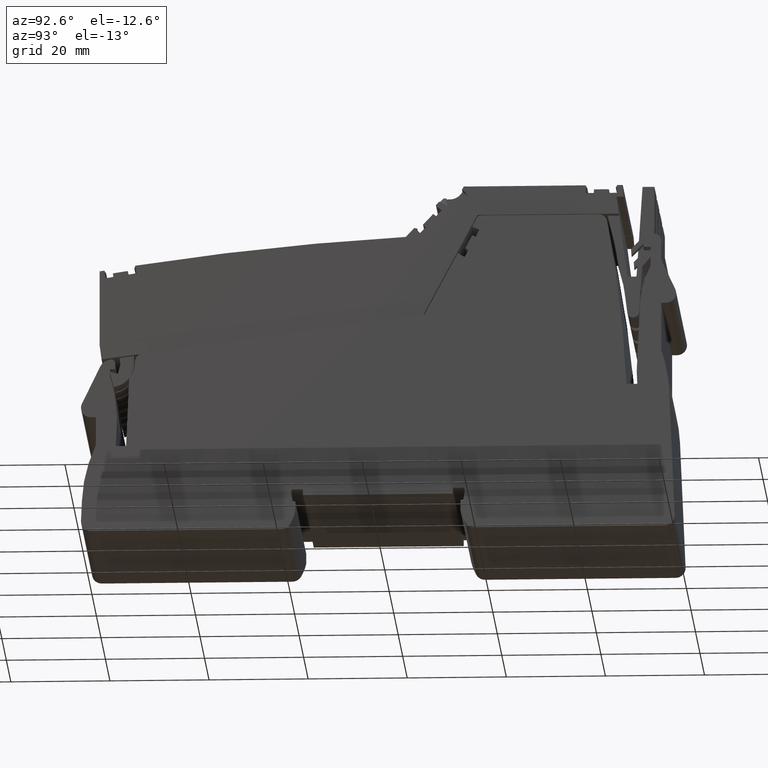
[diagram: clean part render]
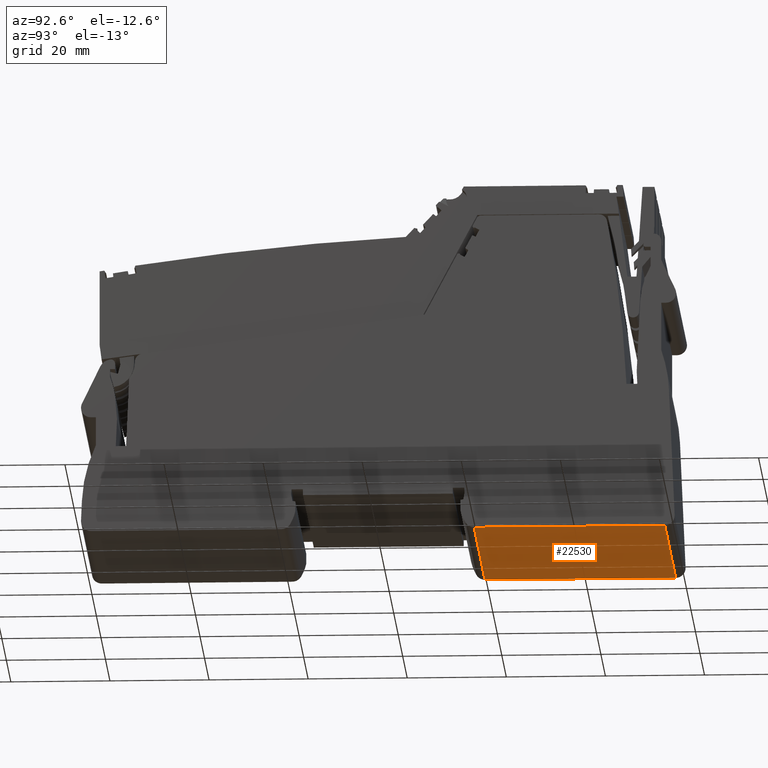
[diagram: same view with one face highlighted and labeled with its STEP entity id]
A machine part, auxiliary view. The second image highlights one B-rep face of the part: STEP entity #22530.
In plain terms, the highlighted planar face has unit normal (0, 0, 1).
Its self-contained STEP definition (entity closure, byte-faithful):
#1460=CARTESIAN_POINT('',(294.439392952716,-62.9542780967939,36.45));
#1470=VERTEX_POINT('',#1460);
#1500=CARTESIAN_POINT('',(217.456642799385,-62.954278096793,36.45));
#1510=DIRECTION('',(1.,-1.05193631583234E-14,0.));
#1520=VECTOR('',#1510,1.);
#1530=LINE('',#1500,#1520);
#1540=CARTESIAN_POINT('',(255.962554944728,-62.9542780967935,36.45));
#1550=VERTEX_POINT('',#1540);
#1560=EDGE_CURVE('',#1550,#1470,#1530,.T.);
#9190=CARTESIAN_POINT('',(255.962554944728,-62.9542780967935,-12.15));
#9200=VERTEX_POINT('',#9190);
#9230=CARTESIAN_POINT('',(217.456642799385,-62.954278096793,-12.15));
#9240=DIRECTION('',(-1.,1.05193631583234E-14,0.));
#9250=VECTOR('',#9240,1.);
#9260=LINE('',#9230,#9250);
#9270=CARTESIAN_POINT('',(294.439392952716,-62.9542780967939,-12.15));
#9280=VERTEX_POINT('',#9270);
#9290=EDGE_CURVE('',#9280,#9200,#9260,.T.);
#21300=CARTESIAN_POINT('',(255.962554944728,-62.9542780967935,
6.14999999999999));
#21310=DIRECTION('',(0.,0.,1.));
#21320=VECTOR('',#21310,1.);
#21330=LINE('',#21300,#21320);
#21340=EDGE_CURVE('',#9200,#1550,#21330,.T.);
#21520=CARTESIAN_POINT('',(294.439392952716,-62.9542780967939,
6.14999999999999));
#21530=DIRECTION('',(0.,0.,1.));
#21540=VECTOR('',#21530,1.);
#21550=LINE('',#21520,#21540);
#21560=EDGE_CURVE('',#9280,#1470,#21550,.T.);
#22420=CARTESIAN_POINT('',(255.962554944728,-62.9542780967935,
6.14999999999999));
#22430=DIRECTION('',(1.05193631583234E-14,1.,-0.));
#22440=DIRECTION('',(-1.,1.05193631583234E-14,0.));
#22450=AXIS2_PLACEMENT_3D('',#22420,#22430,#22440);
#22460=PLANE('',#22450);
#22470=ORIENTED_EDGE('',*,*,#9290,.F.);
#22480=ORIENTED_EDGE('',*,*,#21340,.F.);
#22490=ORIENTED_EDGE('',*,*,#1560,.F.);
#22500=ORIENTED_EDGE('',*,*,#21560,.T.);
#22510=EDGE_LOOP('',(#22500,#22490,#22480,#22470));
#22520=FACE_OUTER_BOUND('',#22510,.T.);
#22530=ADVANCED_FACE('',(#22520),#22460,.F.);